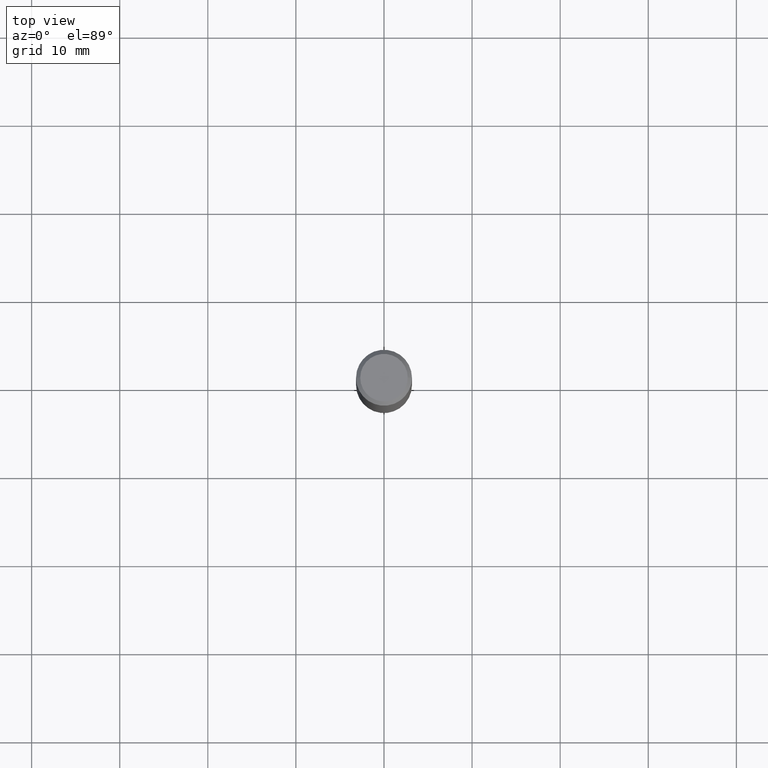
[diagram: clean part render]
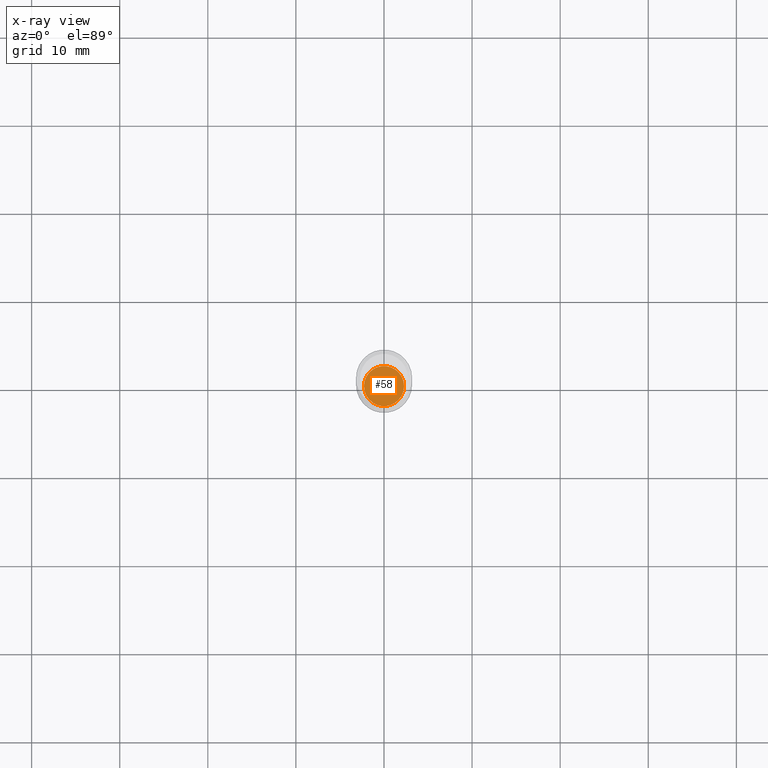
[diagram: x-ray — body ghosted, one internal face saturated and labeled with its STEP entity id]
A machine part, top view, then the same camera in x-ray: the body is ghosted and one INTERNAL B-rep face — a face not visible from any outside direction — is saturated and labeled: STEP entity #58.
In plain terms, the highlighted planar face has unit normal (-0, 0, 1).
Its self-contained STEP definition (entity closure, byte-faithful):
#22 = CARTESIAN_POINT ( 'NONE',  ( 5.331121997483597646E-29, -7.611429318678056905E-15, -2.180000000000000160 ) ) ;
#58 = ADVANCED_FACE ( 'NONE', ( #68 ), #394, .F. ) ;
#68 = FACE_OUTER_BOUND ( 'NONE', #370, .T. ) ;
#73 = AXIS2_PLACEMENT_3D ( 'NONE', #213, #335, #174 ) ;
#107 = EDGE_CURVE ( 'NONE', #116, #125, #454, .T. ) ;
#116 = VERTEX_POINT ( 'NONE', #429 ) ;
#125 = VERTEX_POINT ( 'NONE', #221 ) ;
#161 = ORIENTED_EDGE ( 'NONE', *, *, #187, .F. ) ;
#174 = DIRECTION ( 'NONE',  ( 1.000000000000000000, -6.982962677686265922E-15, 4.876176775795935793E-29 ) ) ;
#176 = DIRECTION ( 'NONE',  ( -2.445468806185136597E-29, 3.491481338843145583E-15, 1.000000000000000000 ) ) ;
#185 = DIRECTION ( 'NONE',  ( -2.445468806185136597E-29, 3.491481338843145583E-15, 1.000000000000000000 ) ) ;
#187 = EDGE_CURVE ( 'NONE', #125, #116, #352, .T. ) ;
#190 = AXIS2_PLACEMENT_3D ( 'NONE', #210, #176, #322 ) ;
#210 = CARTESIAN_POINT ( 'NONE',  ( 5.331121997483597646E-29, -7.611429318678056905E-15, -2.180000000000000160 ) ) ;
#213 = CARTESIAN_POINT ( 'NONE',  ( 5.331121997483597646E-29, -7.611429318678056905E-15, -2.180000000000000160 ) ) ;
#221 = CARTESIAN_POINT ( 'NONE',  ( 0.08949999999999999623, -8.236404478330977270E-15, -2.180000000000000160 ) ) ;
#246 = AXIS2_PLACEMENT_3D ( 'NONE', #22, #185, #485 ) ;
#281 = ORIENTED_EDGE ( 'NONE', *, *, #107, .F. ) ;
#322 = DIRECTION ( 'NONE',  ( 1.000000000000000000, -6.982962677686262766E-15, 0.000000000000000000 ) ) ;
#335 = DIRECTION ( 'NONE',  ( -2.438088387897960049E-29, 3.491481338843145188E-15, 1.000000000000000000 ) ) ;
#352 = CIRCLE ( 'NONE', #190, 0.08949999999999999623 ) ;
#370 = EDGE_LOOP ( 'NONE', ( #161, #281 ) ) ;
#394 = PLANE ( 'NONE',  #73 ) ;
#429 = CARTESIAN_POINT ( 'NONE',  ( -0.08949999999999999623, -6.972844342998656656E-15, -2.180000000000000160 ) ) ;
#454 = CIRCLE ( 'NONE', #246, 0.08949999999999999623 ) ;
#485 = DIRECTION ( 'NONE',  ( 1.000000000000000000, -6.982962677686262766E-15, 0.000000000000000000 ) ) ;